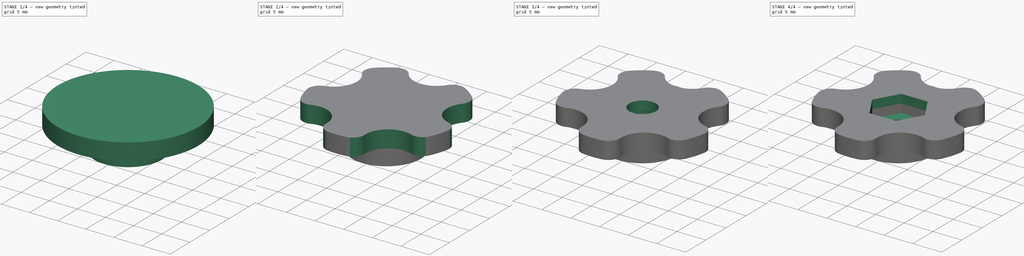
[diagram: build sequence overview — one tinted view per stage of 4, left to right]
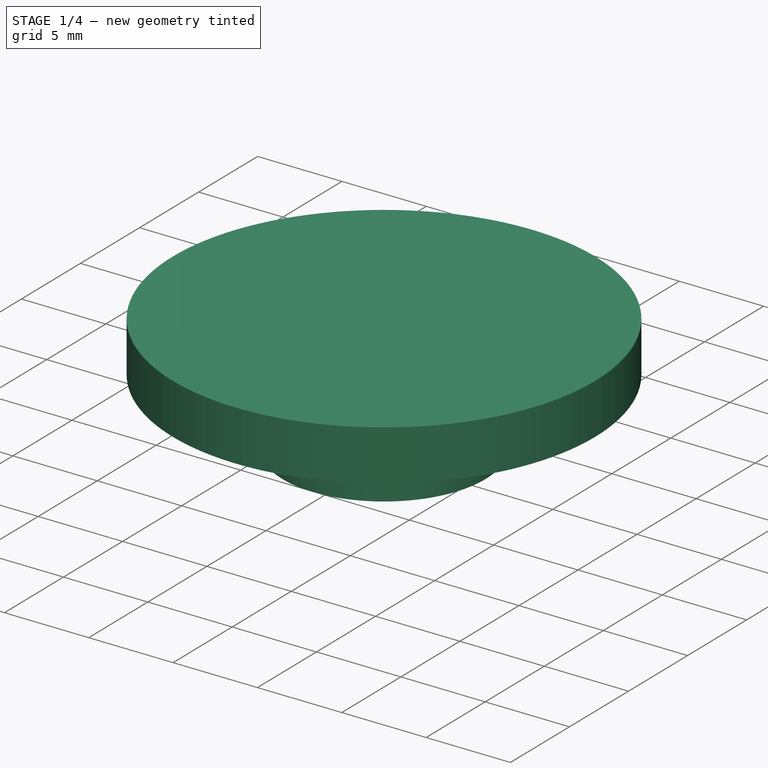
[diagram: stage 1 of 4 — iso view after this stage's code; geometry added in this stage tinted green]
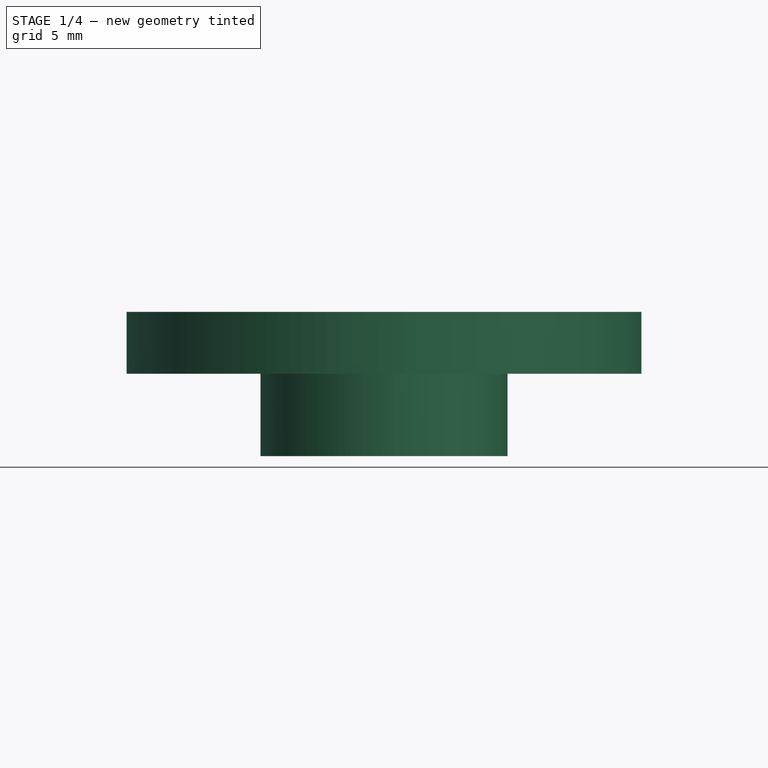
[diagram: stage 1 of 4 — front view after this stage's code; geometry added in this stage tinted green]
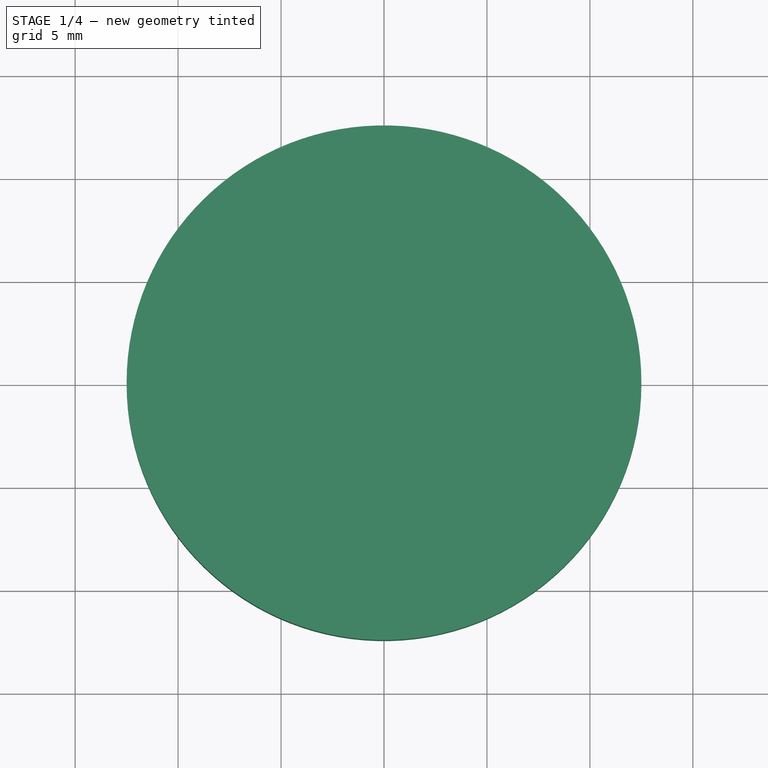
[diagram: stage 1 of 4 — top view after this stage's code; geometry added in this stage tinted green]
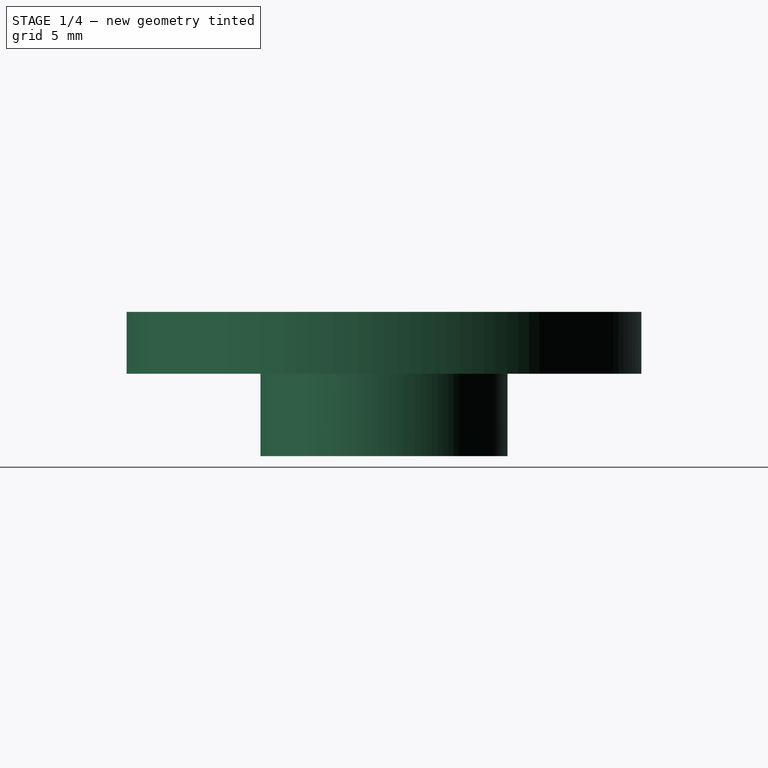
[diagram: stage 1 of 4 — right view after this stage's code; geometry added in this stage tinted green]
FCSTD DOCUMENT  (FreeCAD 0.19R24366 (Git))
Label: axis-cap
License: All rights reserved
LicenseURL: http://en.wikipedia.org/wiki/All_rights_reserved
objects: Sketcher::SketchObject×6, PartDesign::Pocket×5, PartDesign::Pad×3, PartDesign::Line×1, PartDesign::PolarPattern×1, PartDesign::Fillet×1, PartDesign::Body×1
note: 27 computed .brp shape members not serialized (recipe doc carries the construction recipe); baked Part::Feature solids carry a one-line shape summary decoded from their .brp

FEATURE [Sketcher::SketchObject] Sketch
  FullyConstrained = true
  MapMode = 5
  Support = -> [XY_Plane]
  sketch-geometry (8):
    g0: LineSegment StartX=-2.28631 StartY=-3.96 StartZ=0 EndX=2.28631 EndY=-3.96 EndZ=0
    g1: LineSegment StartX=2.28631 StartY=-3.96 StartZ=0 EndX=4.57261 EndY=7.221e-13 EndZ=0
    g2: LineSegment StartX=4.57261 StartY=7.221e-13 StartZ=0 EndX=2.28631 EndY=3.96 EndZ=0
    g3: LineSegment StartX=2.28631 StartY=3.96 StartZ=0 EndX=-2.28631 EndY=3.96 EndZ=0
    g4: LineSegment StartX=-2.28631 StartY=3.96 StartZ=0 EndX=-4.57261 EndY=1.3771e-12 EndZ=0
    g5: LineSegment StartX=-4.57261 StartY=1.3771e-12 StartZ=0 EndX=-2.28631 EndY=-3.96 EndZ=0
    g6: Circle CenterX=0 CenterY=0 CenterZ=0 NormalX=0 NormalY=0 NormalZ=1 AngleXU=0 Radius=4.57261
    g7: Circle CenterX=0 CenterY=0 CenterZ=0 NormalX=0 NormalY=0 NormalZ=1 AngleXU=0 Radius=6
  constraints (18):
    c: Coincident(g0,g1)
    c: Coincident(g1,g2)
    c: Coincident(g2,g3)
    c: Coincident(g3,g4)
    c: Coincident(g4,g5)
    c: Coincident(g5,g0)
    c: Equal(g0, g1-g5) x5
    c: PointOnObject(g0,g6)
    c: PointOnObject(g1,g6)
    c: PointOnObject(g2,g6)
    c: PointOnObject(g3,g6)
    c: PointOnObject(g4,g6)
    c: PointOnObject(g5,g6)
    c: Coincident(g6,g-1)
    c: Coincident(g7,g-1)
    c: Horizontal(g3)
    c: Radius(g7) = 6
    c: DistanceY(g0,g3) = 7.92
FEATURE [PartDesign::Pad] Pad
  Direction = (1,1,1)
  Length = 4
  Length2 = 100
  Profile = -> Sketch
  Type = 0
FEATURE [Sketcher::SketchObject] Sketch001
  ExternalGeometry = -> [Pad]
  FullyConstrained = true
  MapMode = 5
  Placement = pos=(0,0,4) rot=(0,0,1;0rad)
  Support = -> [Pad]
  sketch-geometry (1):
    g0: Circle CenterX=0 CenterY=0 CenterZ=0 NormalX=0 NormalY=0 NormalZ=1 AngleXU=0 Radius=12.5
  constraints (2):
    c: Coincident(g0,g-1)
    c: Radius(g0) = 12.5
FEATURE [PartDesign::Pad] Pad001
  BaseFeature = -> Pad
  Direction = (1,1,1)
  Length = 3
  Length2 = 100
  Profile = -> Sketch001
  Type = 0
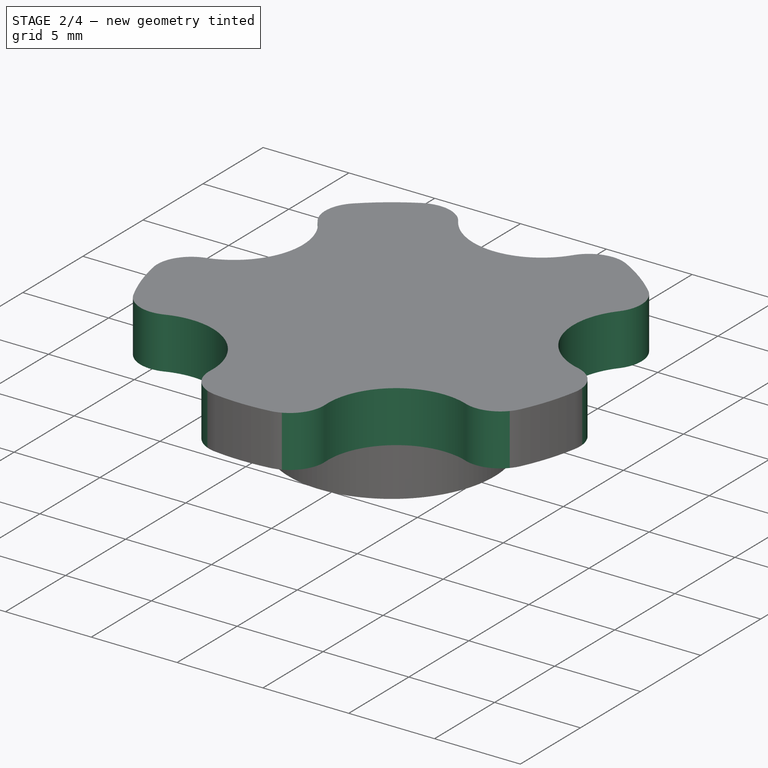
[diagram: stage 2 of 4 — iso view after this stage's code; geometry added in this stage tinted green]
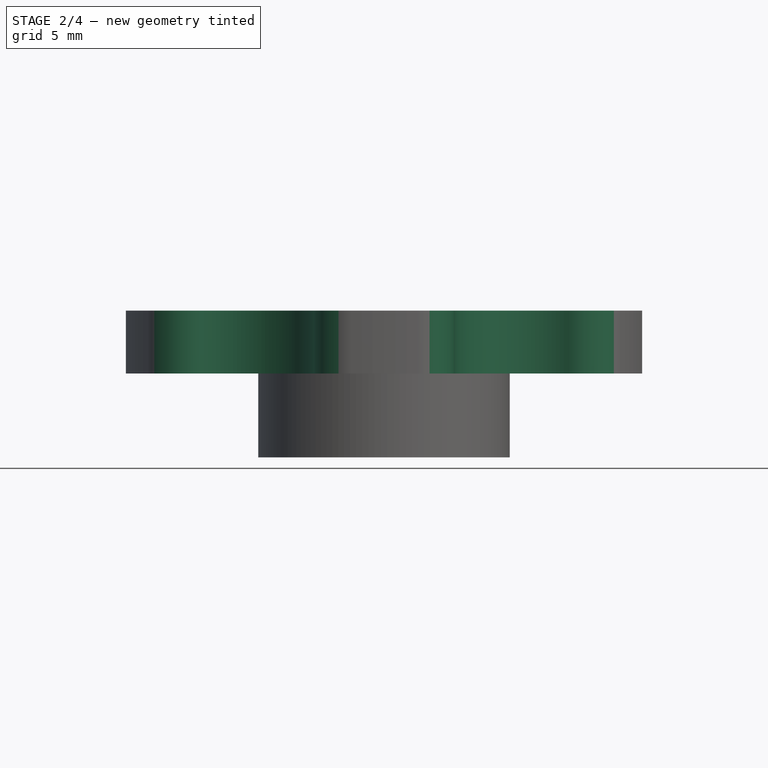
[diagram: stage 2 of 4 — front view after this stage's code; geometry added in this stage tinted green]
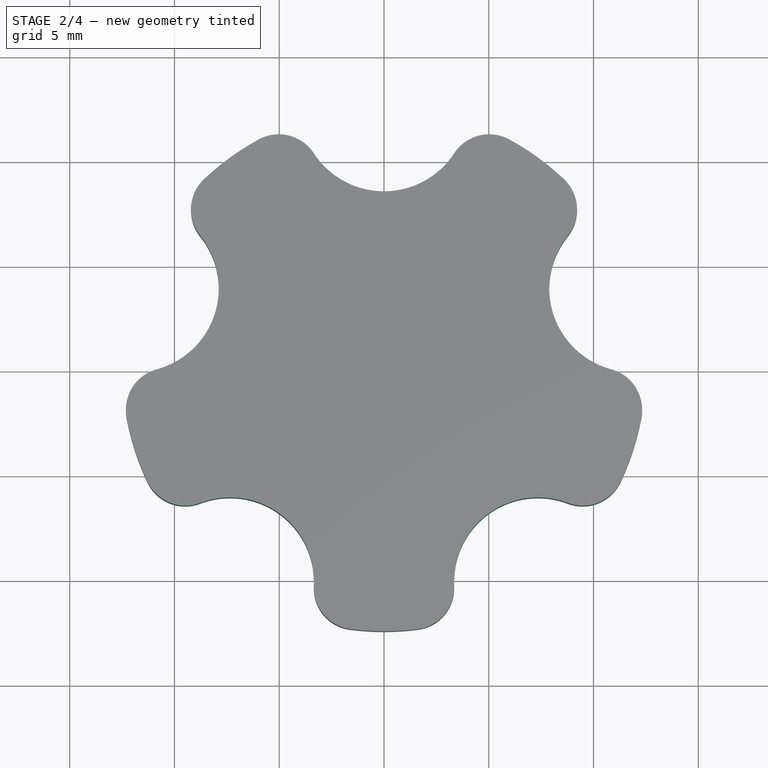
[diagram: stage 2 of 4 — top view after this stage's code; geometry added in this stage tinted green]
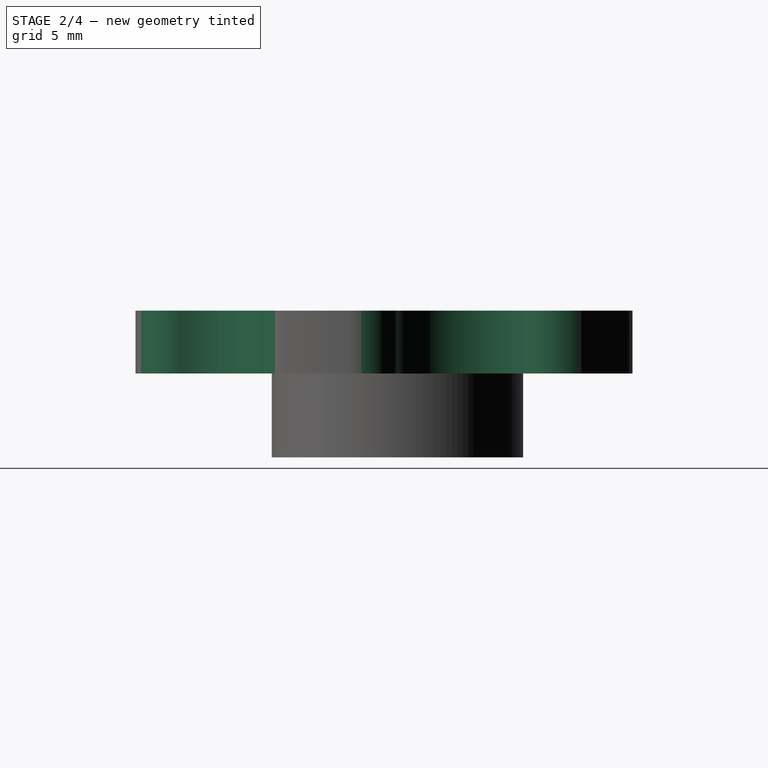
[diagram: stage 2 of 4 — right view after this stage's code; geometry added in this stage tinted green]
FEATURE [Sketcher::SketchObject] Sketch002
  ExternalGeometry = -> [Pad001]
  FullyConstrained = true
  MapMode = 5
  Placement = pos=(0,0,7) rot=(0,0,1;0rad)
  Support = -> [Pad001]
  sketch-geometry (1):
    g0: Circle CenterX=0 CenterY=12.5 CenterZ=0 NormalX=0 NormalY=0 NormalZ=1 AngleXU=0 Radius=4
  constraints (3):
    c: PointOnObject(g0,g-2)
    c: PointOnObject(g0,g-3)
    c: Radius(g0) = 4
FEATURE [PartDesign::Pocket] Pocket
  BaseFeature = -> Pad001
  Length = 0
  Length2 = 100
  Profile = -> Sketch002
  Type = 3
  UpToFace = -> Pad001 [Face2]
FEATURE [PartDesign::Line] DatumLine
  AttacherType = Attacher::AttachEngineLine
  Length = 20
  MapMode = 19
  ResizeMode = 0
  Support = -> [Pocket]
FEATURE [PartDesign::PolarPattern] PolarPattern
  Angle = 360
  Axis = -> Z_Axis
  BaseFeature = -> Pocket
  Occurrences = 5
  Originals = -> [Pocket]
FEATURE [PartDesign::Fillet] Fillet
  Base = -> PolarPattern [Edge30,Edge31,Edge16,Edge2,Edge28,Edge29,Edge26,Edge27,Edge4,Edge25]
  BaseFeature = -> PolarPattern
  Radius = 2
  SupportTransform = false
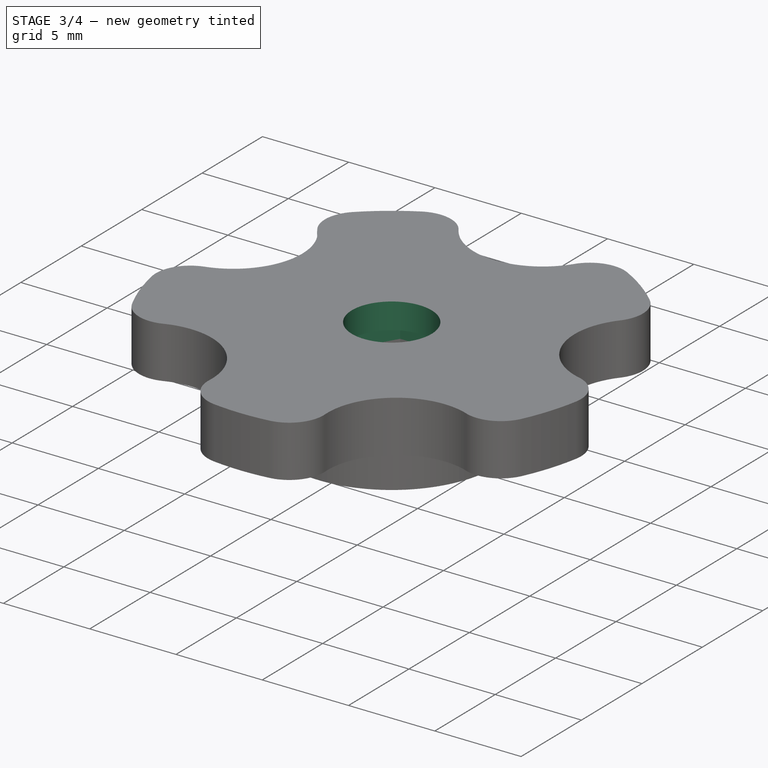
[diagram: stage 3 of 4 — iso view after this stage's code; geometry added in this stage tinted green]
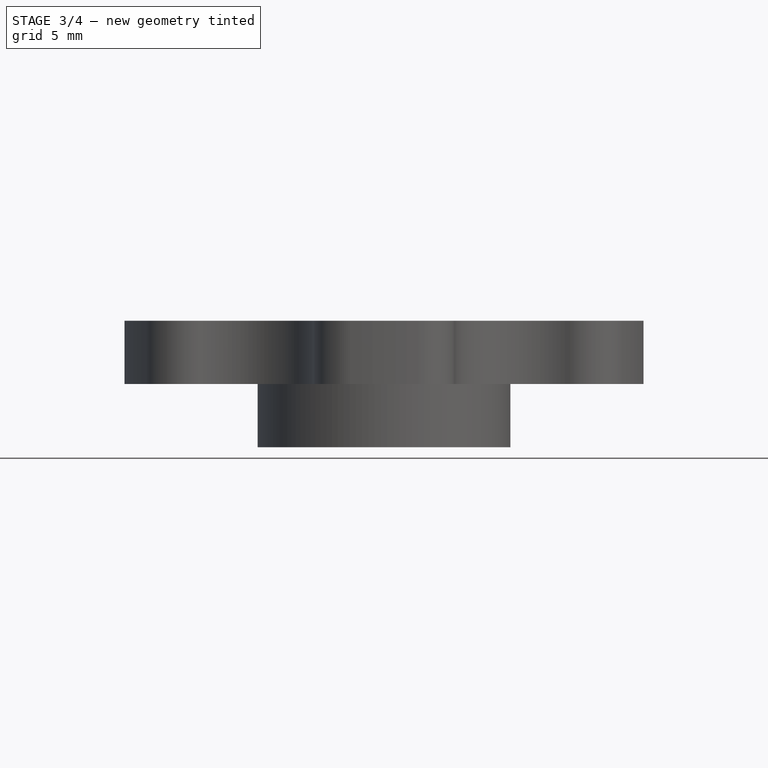
[diagram: stage 3 of 4 — front view after this stage's code; geometry added in this stage tinted green]
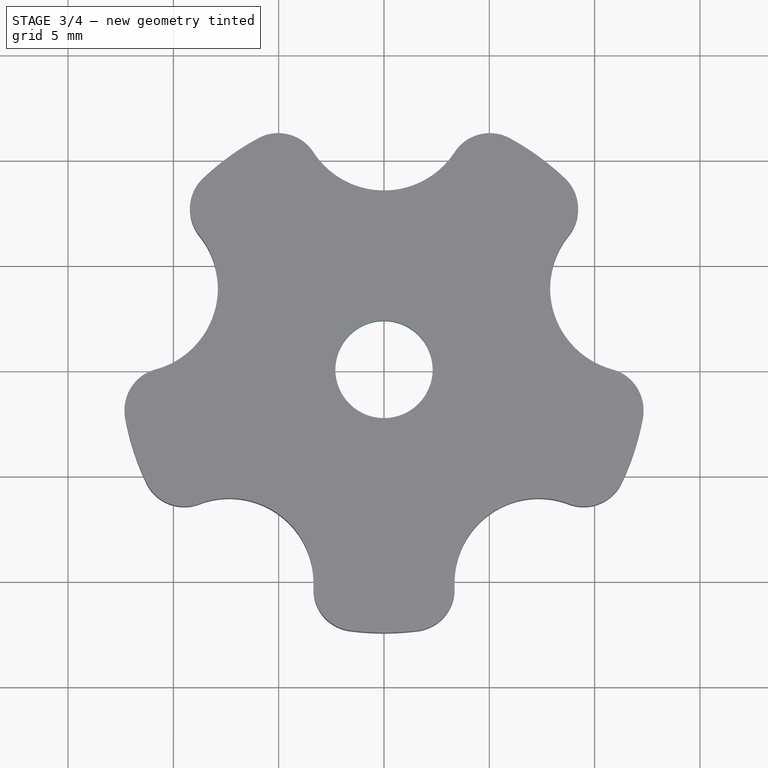
[diagram: stage 3 of 4 — top view after this stage's code; geometry added in this stage tinted green]
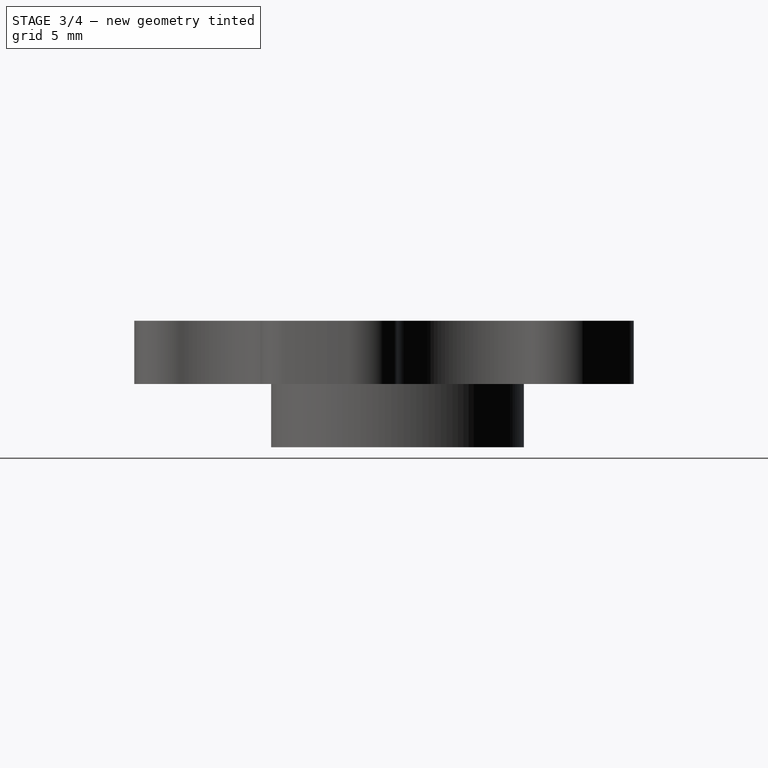
[diagram: stage 3 of 4 — right view after this stage's code; geometry added in this stage tinted green]
FEATURE [Sketcher::SketchObject] Sketch003
  FullyConstrained = true
  MapMode = 5
  Placement = pos=(0,0,4) rot=(1,0,0;3.14159rad)
  Support = -> [Fillet]
  sketch-geometry (1):
    g0: Circle CenterX=0 CenterY=0 CenterZ=0 NormalX=0 NormalY=0 NormalZ=1 AngleXU=0 Radius=2.31
  constraints (2):
    c: Coincident(g0,g-1)
    c: Radius(g0) = 2.31
FEATURE [PartDesign::Pocket] Pocket001
  BaseFeature = -> Fillet
  Length = 0
  Length2 = 100
  Profile = -> Sketch003
  Type = 3
  UpToFace = -> Fillet [Face5]
FEATURE [PartDesign::Pocket] Pocket002
  BaseFeature = -> Pocket001
  Length = 1
  Length2 = 100
  Profile = -> Pocket001 [Face25]
  Type = 0
FEATURE [PartDesign::Pocket] Pocket003
  BaseFeature = -> Pocket002
  Length = 1.5
  Length2 = 100
  Profile = -> Pocket002 [Face26]
  Type = 0
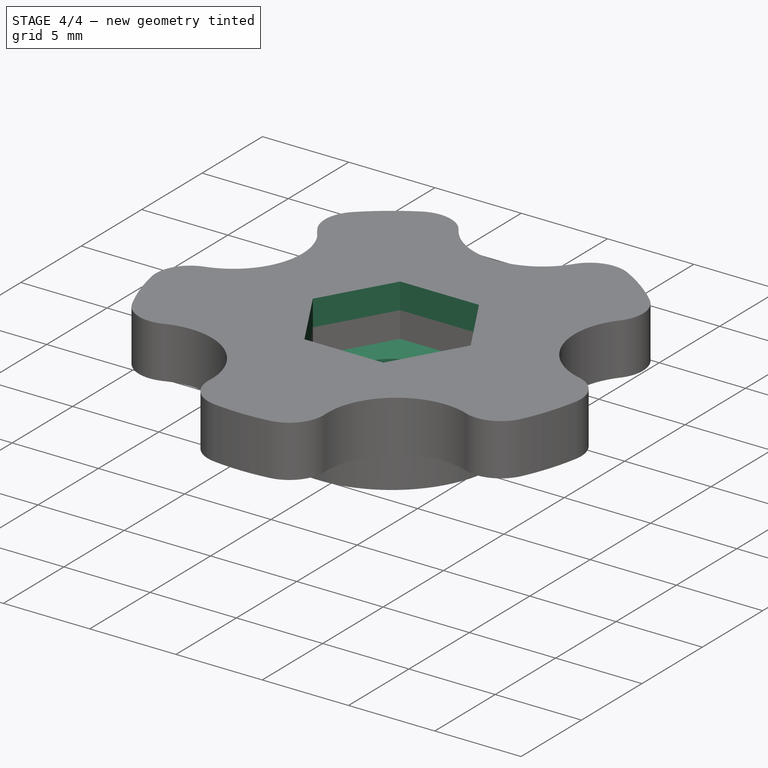
[diagram: stage 4 of 4 — iso view after this stage's code; geometry added in this stage tinted green]
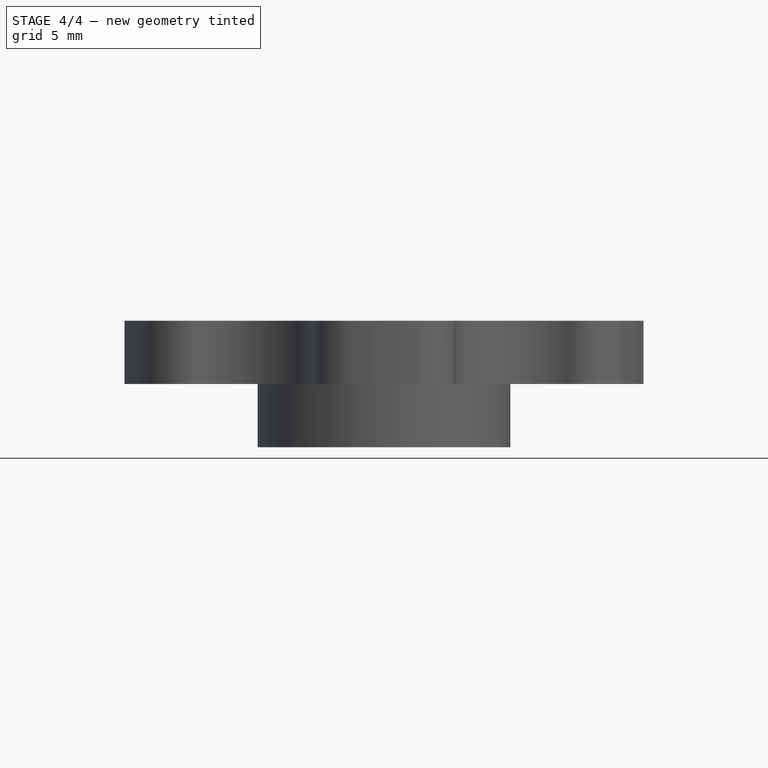
[diagram: stage 4 of 4 — front view after this stage's code; geometry added in this stage tinted green]
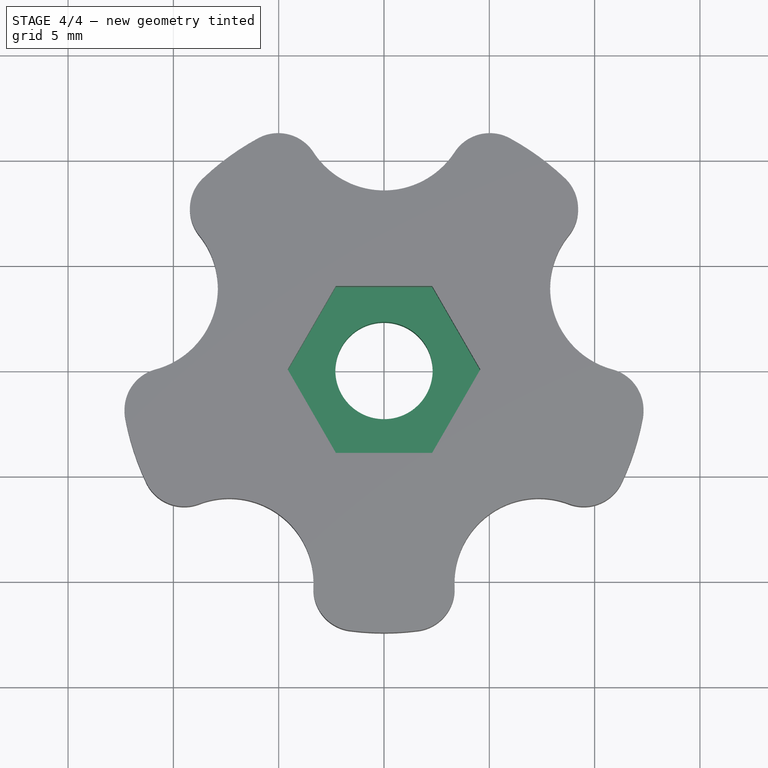
[diagram: stage 4 of 4 — top view after this stage's code; geometry added in this stage tinted green]
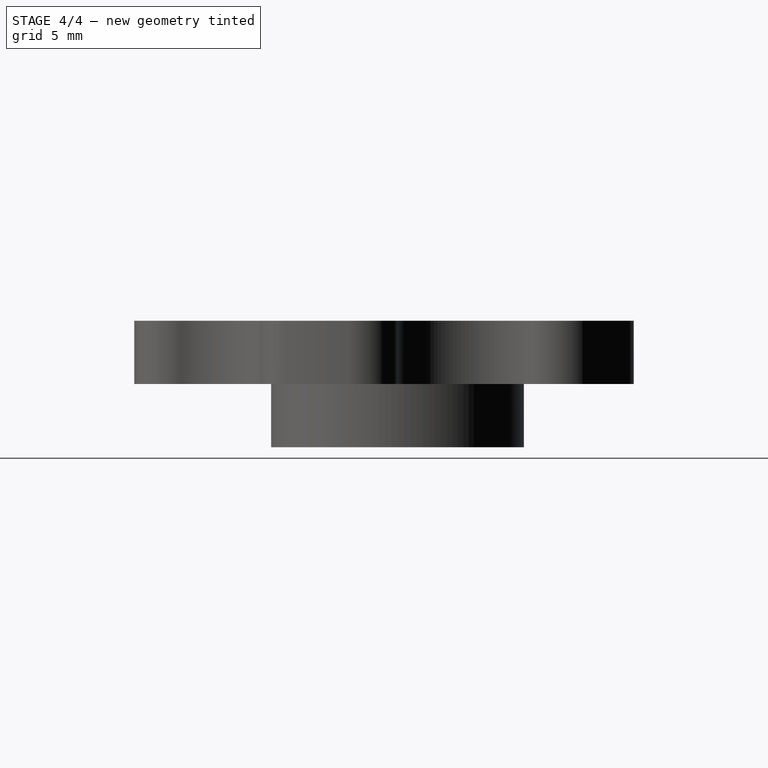
[diagram: stage 4 of 4 — right view after this stage's code; geometry added in this stage tinted green]
FEATURE [Sketcher::SketchObject] Sketch004
  FullyConstrained = true
  MapMode = 5
  Placement = pos=(0,0,1) rot=(1,0,0;3.14159rad)
  Support = -> [Pocket003]
FEATURE [PartDesign::Pocket] Pocket004
  BaseFeature = -> Pocket003
  Length = 5
  Length2 = 100
  Profile = -> Pocket003 [Face26]
  Type = 1
FEATURE [Sketcher::SketchObject] Sketch005
  ExternalGeometry = -> [Pocket004]
  FullyConstrained = true
  MapMode = 5
  Placement = pos=(0,0,1) rot=(1,0,0;3.14159rad)
  Support = -> [Pocket004]
  sketch-geometry (2):
    g0: Circle CenterX=0 CenterY=0 CenterZ=0 NormalX=0 NormalY=0 NormalZ=1 AngleXU=0 Radius=6
    g1: Circle CenterX=0 CenterY=0 CenterZ=0 NormalX=0 NormalY=0 NormalZ=1 AngleXU=0 Radius=2.31
  constraints (4):
    c: Coincident(g0,g-1)
    c: Equal(g0,g-3)
    c: Coincident(g1,g0)
    c: Radius(g1) = 2.31
FEATURE [PartDesign::Pad] Pad002
  BaseFeature = -> Pocket004
  Direction = (1,1,1)
  Length = 3
  Length2 = 100
  Profile = -> Sketch005
  Reversed = true
  Type = 0
FEATURE [PartDesign::Body] Body
  Group = -> [Sketch,Pad,Sketch001,Pad001,Sketch002,Pocket,DatumLine,PolarPattern,Fillet,Sketch003,Pocket001,Pocket002,Pocket003,Sketch004,Pocket004,Sketch005,Pad002]
  Origin = -> Origin
  Tip = -> Pad002
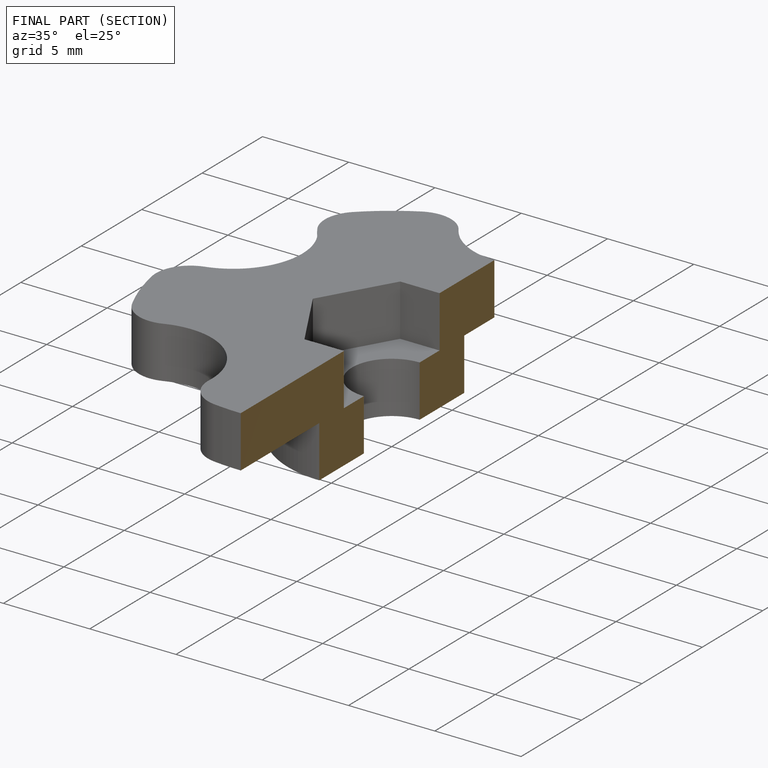
[diagram: finished part — half-section view (interior)]
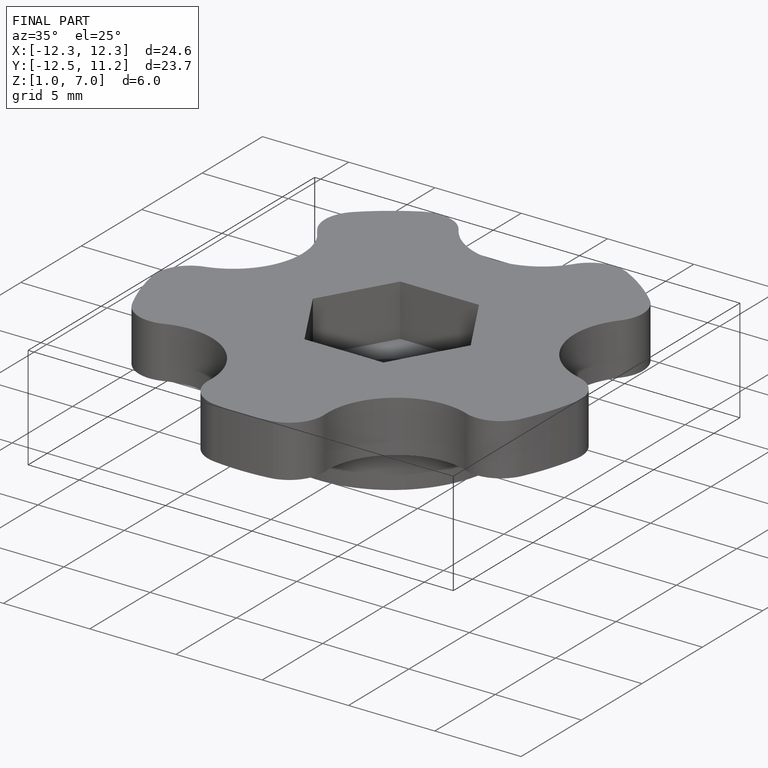
[diagram: finished part — iso view with bounding-box wireframe]
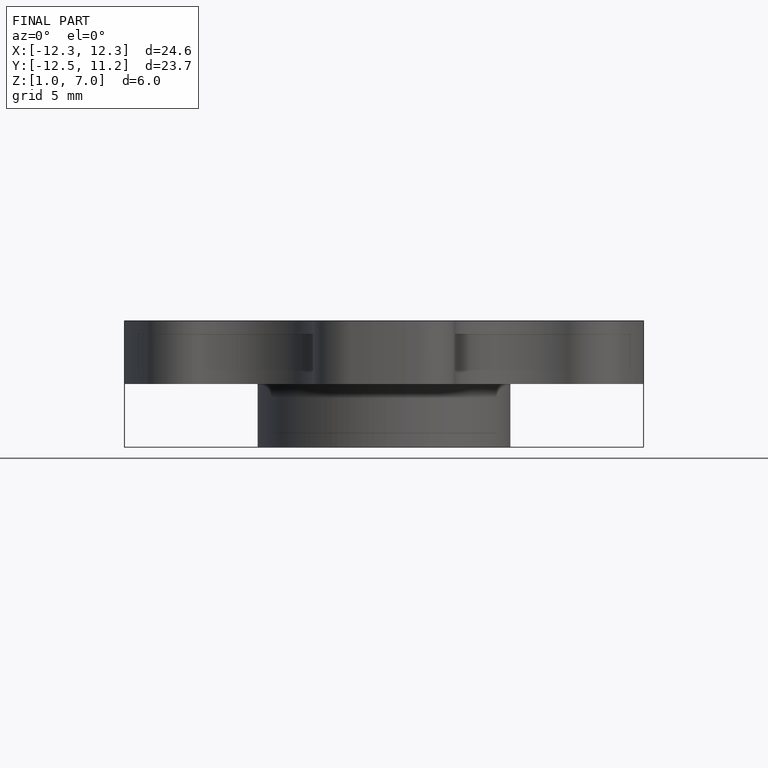
[diagram: finished part — front view with bounding-box wireframe]
